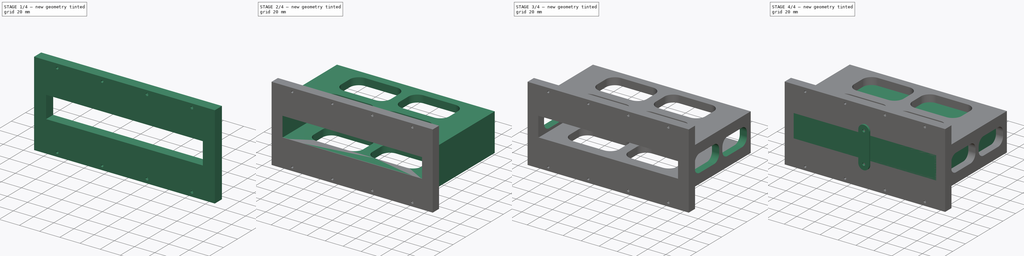
[diagram: build sequence overview — one tinted view per stage of 4, left to right]
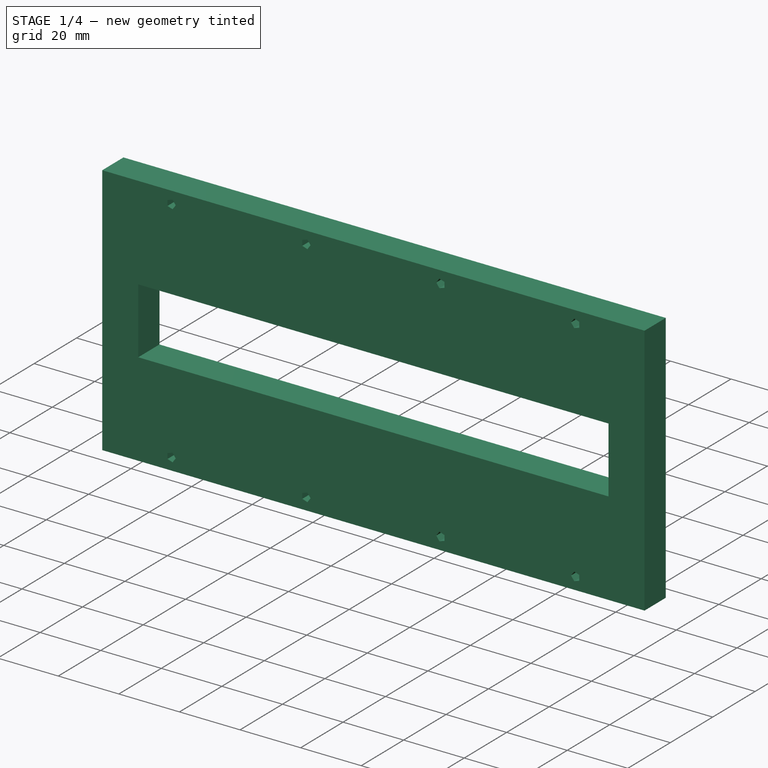
[diagram: stage 1 of 4 — iso view after this stage's code; geometry added in this stage tinted green]
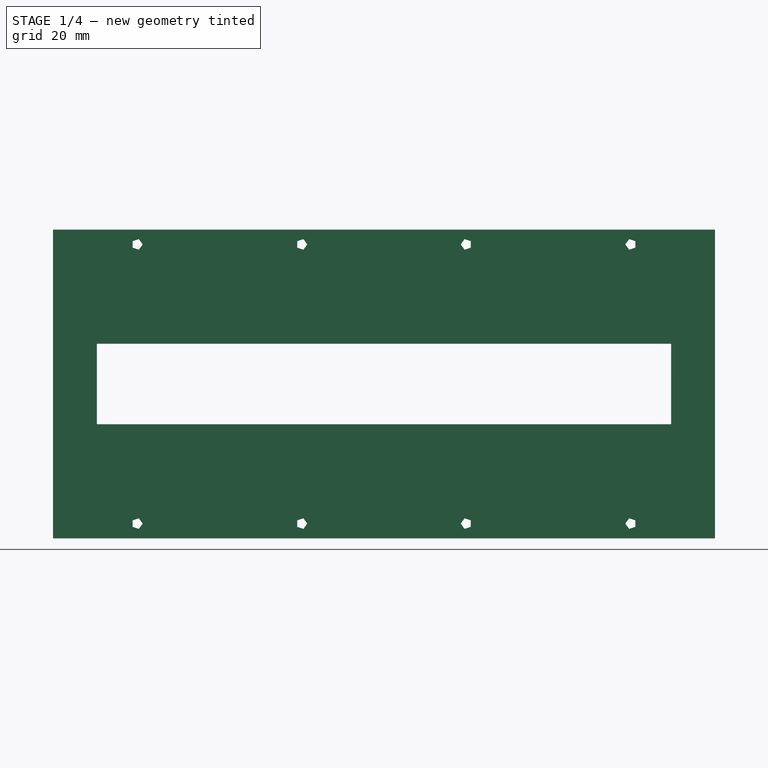
[diagram: stage 1 of 4 — front view after this stage's code; geometry added in this stage tinted green]
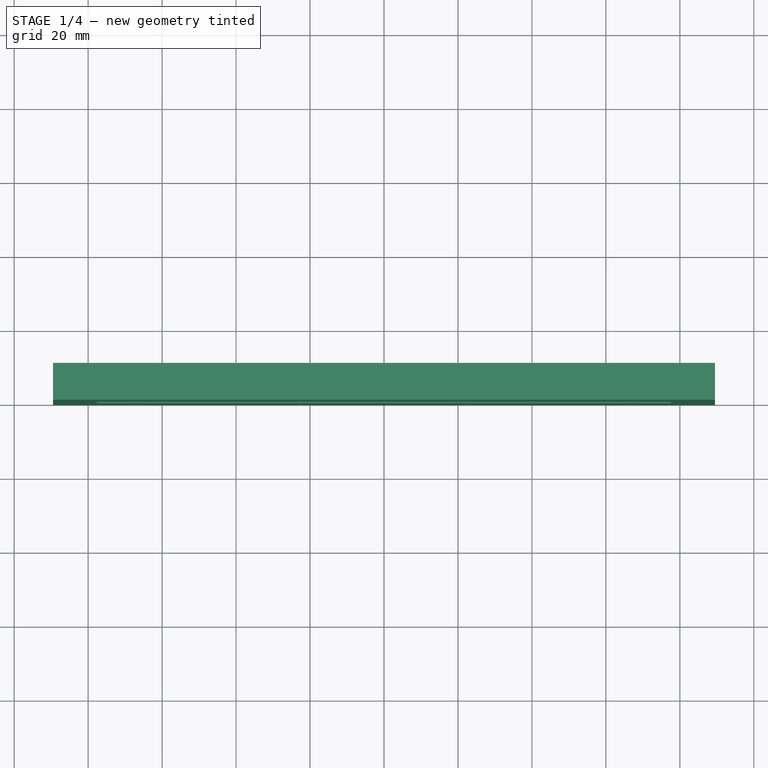
[diagram: stage 1 of 4 — top view after this stage's code; geometry added in this stage tinted green]
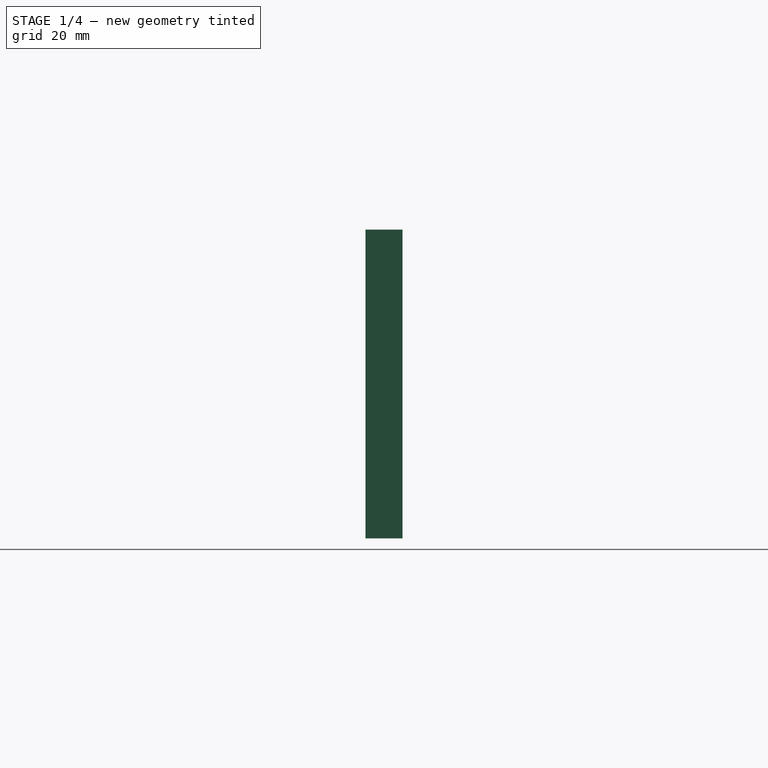
[diagram: stage 1 of 4 — right view after this stage's code; geometry added in this stage tinted green]
FCSTD DOCUMENT  (FreeCAD 0.21R33771 (Git))
Label: tplink-er605
License: All rights reserved
LicenseURL: https://en.wikipedia.org/wiki/All_rights_reserved
objects: PartDesign::Plane×13, Sketcher::SketchObject×11, PartDesign::CoordinateSystem×9, PartDesign::Pocket×7, PartDesign::Pad×4, App::Part×4, App::DocumentObjectGroup×3, PartDesign::Body×3, App::Link×3, App::FeaturePython×1
note: 58 computed .brp shape members not serialized (recipe doc carries the construction recipe); baked Part::Feature solids carry a one-line shape summary decoded from their .brp

FEATURE [PartDesign::Plane] DatumPlane  label="Front Panel Front"
  Length = 203.451
  MapMode = 5
  Placement = pos=(0,0,0) rot=(1,0,0;1.5708rad)
  ResizeMode = 0
  Support = -> [XZ_Plane]
  Width = 107.951
FEATURE [PartDesign::Plane] DatumPlane002  label="Front Panel Back"
  AttachmentOffset = pos=(0,0,-10) rot=(0,0,1;0rad)
  Length = 203.451
  MapMode = 5
  Placement = pos=(0,10,2.2e-15) rot=(1,0,0;1.5708rad)
  ResizeMode = 0
  Support = -> [DatumPlane]
  Width = 107.951
FEATURE [Sketcher::SketchObject] Sketch  label="Front Panel Outer"
  FullyConstrained = true
  MapMode = 5
  Placement = pos=(0,0,0) rot=(1,0,0;1.5708rad)
  Support = -> [DatumPlane]
  sketch-geometry (5):
    g0: LineSegment StartX=-89.5 StartY=41.75 StartZ=0 EndX=-89.5 EndY=-41.75 EndZ=0
    g1: LineSegment StartX=-89.5 StartY=-41.75 StartZ=0 EndX=89.5 EndY=-41.75 EndZ=0
    g2: LineSegment StartX=89.5 StartY=-41.75 StartZ=0 EndX=89.5 EndY=41.75 EndZ=0
    g3: LineSegment StartX=89.5 StartY=41.75 StartZ=0 EndX=-89.5 EndY=41.75 EndZ=0
    g4: GeomPoint X=0 Y=0 Z=0
  constraints (12):
    c: Coincident(g0,g1)
    c: Coincident(g1,g2)
    c: Coincident(g2,g3)
    c: Coincident(g3,g0)
    c: Horizontal(g1)
    c: Horizontal(g3)
    c: Vertical(g0)
    c: Vertical(g2)
    c: Symmetric(g1,g0,g4)
    c: Coincident(g4,g-1)
    c: DistanceX(g3,g3) = 179  'width'
    c: DistanceY(g2,g2) = 83.5  'height'
FEATURE [PartDesign::Pad] Pad  label="Front Panel"
  Direction = (0,-1,-2e-16)
  Length = 10
  Length2 = 10
  Placement = pos=(0,0,0) rot=(1,0,0;1.5708rad)
  Profile = -> Sketch
  ReferenceAxis = -> Sketch [N_Axis]
  Type = 3
  UpToFace = -> DatumPlane002 [Plane]
FEATURE [Sketcher::SketchObject] Sketch002  label="Front Panel Mounting Holes Outer"
  FullyConstrained = true
  MapMode = 5
  Placement = pos=(0,0,0) rot=(1,0,0;1.5708rad)
  Support = -> [DatumPlane]
  sketch-geometry (51):
    g0: LineSegment StartX=-66.75 StartY=37.75 StartZ=0 EndX=66.75 EndY=37.75 EndZ=0
    g1: LineSegment StartX=0 StartY=37.75 StartZ=0 EndX=0 EndY=-37.75 EndZ=0
    g2: LineSegment StartX=23.4635 StartY=38.6317 StartZ=0 EndX=21.7865 EndY=39.1766 EndZ=0
    g3: LineSegment StartX=21.7865 StartY=39.1766 StartZ=0 EndX=20.75 EndY=37.75 EndZ=0
    g4: LineSegment StartX=20.75 StartY=37.75 StartZ=0 EndX=21.7865 EndY=36.3234 EndZ=0
    g5: LineSegment StartX=21.7865 StartY=36.3234 StartZ=0 EndX=23.4635 EndY=36.8683 EndZ=0
    g6: LineSegment StartX=23.4635 StartY=36.8683 StartZ=0 EndX=23.4635 EndY=38.6317 EndZ=0
    g7: Circle CenterX=22.25 CenterY=37.75 CenterZ=0 NormalX=0 NormalY=0 NormalZ=1 AngleXU=0 Radius=1.5
    g8: LineSegment StartX=67.9635 StartY=36.8683 StartZ=0 EndX=67.9635 EndY=38.6317 EndZ=0
    g9: LineSegment StartX=67.9635 StartY=38.6317 StartZ=0 EndX=66.2865 EndY=39.1766 EndZ=0
    g10: LineSegment StartX=66.2865 StartY=39.1766 StartZ=0 EndX=65.25 EndY=37.75 EndZ=0
    g11: LineSegment StartX=65.25 StartY=37.75 StartZ=0 EndX=66.2865 EndY=36.3234 EndZ=0
    g12: LineSegment StartX=66.2865 StartY=36.3234 StartZ=0 EndX=67.9635 EndY=36.8683 EndZ=0
    g13: Circle CenterX=66.75 CenterY=37.75 CenterZ=0 NormalX=0 NormalY=0 NormalZ=1 AngleXU=0 Radius=1.5
    g14: LineSegment StartX=-20.75 StartY=37.75 StartZ=0 EndX=-21.7865 EndY=39.1766 EndZ=0
    g15: LineSegment StartX=-21.7865 StartY=39.1766 StartZ=0 EndX=-23.4635 EndY=38.6317 EndZ=0
    g16: LineSegment StartX=-23.4635 StartY=38.6317 StartZ=0 EndX=-23.4635 EndY=36.8683 EndZ=0
    g17: LineSegment StartX=-23.4635 StartY=36.8683 StartZ=0 EndX=-21.7865 EndY=36.3234 EndZ=0
    g18: LineSegment StartX=-21.7865 StartY=36.3234 StartZ=0 EndX=-20.75 EndY=37.75 EndZ=0
    g19: Circle CenterX=-22.25 CenterY=37.75 CenterZ=0 NormalX=0 NormalY=0 NormalZ=1 AngleXU=0 Radius=1.5
    g20: LineSegment StartX=-65.25 StartY=37.75 StartZ=0 EndX=-66.2865 EndY=39.1766 EndZ=0
    g21: LineSegment StartX=-66.2865 StartY=39.1766 StartZ=0 EndX=-67.9635 EndY=38.6317 EndZ=0
    g22: LineSegment StartX=-67.9635 StartY=38.6317 StartZ=0 EndX=-67.9635 EndY=36.8683 EndZ=0
    g23: LineSegment StartX=-67.9635 StartY=36.8683 StartZ=0 EndX=-66.2865 EndY=36.3234 EndZ=0
    g24: LineSegment StartX=-66.2865 StartY=36.3234 StartZ=0 EndX=-65.25 EndY=37.75 EndZ=0
    g25: Circle CenterX=-66.75 CenterY=37.75 CenterZ=0 NormalX=0 NormalY=0 NormalZ=1 AngleXU=0 Radius=1.5
    g26: LineSegment StartX=-66.2865 StartY=-39.1766 StartZ=0 EndX=-65.25 EndY=-37.75 EndZ=0
    g27: LineSegment StartX=-65.25 StartY=-37.75 StartZ=0 EndX=-66.2865 EndY=-36.3234 EndZ=0
    g28: LineSegment StartX=-66.2865 StartY=-36.3234 StartZ=0 EndX=-67.9635 EndY=-36.8683 EndZ=0
    g29: LineSegment StartX=-67.9635 StartY=-36.8683 StartZ=0 EndX=-67.9635 EndY=-38.6317 EndZ=0
    g30: LineSegment StartX=-67.9635 StartY=-38.6317 StartZ=0 EndX=-66.2865 EndY=-39.1766 EndZ=0
    g31: Circle CenterX=-66.75 CenterY=-37.75 CenterZ=0 NormalX=0 NormalY=0 NormalZ=1 AngleXU=0 Radius=1.5
    g32: LineSegment StartX=-20.75 StartY=-37.75 StartZ=0 EndX=-21.7865 EndY=-36.3234 EndZ=0
    g33: LineSegment StartX=-21.7865 StartY=-36.3234 StartZ=0 EndX=-23.4635 EndY=-36.8683 EndZ=0
    g34: LineSegment StartX=-23.4635 StartY=-36.8683 StartZ=0 EndX=-23.4635 EndY=-38.6317 EndZ=0
    g35: LineSegment StartX=-23.4635 StartY=-38.6317 StartZ=0 EndX=-21.7865 EndY=-39.1766 EndZ=0
    g36: LineSegment StartX=-21.7865 StartY=-39.1766 StartZ=0 EndX=-20.75 EndY=-37.75 EndZ=0
    g37: Circle CenterX=-22.25 CenterY=-37.75 CenterZ=0 NormalX=0 NormalY=0 NormalZ=1 AngleXU=0 Radius=1.5
    g38: LineSegment StartX=21.7865 StartY=-39.1766 StartZ=0 EndX=23.4635 EndY=-38.6317 EndZ=0
    g39: LineSegment StartX=23.4635 StartY=-38.6317 StartZ=0 EndX=23.4635 EndY=-36.8683 EndZ=0
    g40: LineSegment StartX=23.4635 StartY=-36.8683 StartZ=0 EndX=21.7865 EndY=-36.3234 EndZ=0
    g41: LineSegment StartX=21.7865 StartY=-36.3234 StartZ=0 EndX=20.75 EndY=-37.75 EndZ=0
    g42: LineSegment StartX=20.75 StartY=-37.75 StartZ=0 EndX=21.7865 EndY=-39.1766 EndZ=0
    g43: Circle CenterX=22.25 CenterY=-37.75 CenterZ=0 NormalX=0 NormalY=0 NormalZ=1 AngleXU=0 Radius=1.5
    g44: LineSegment StartX=67.9635 StartY=-36.8683 StartZ=0 EndX=66.2865 EndY=-36.3234 EndZ=0
    g45: LineSegment StartX=66.2865 StartY=-36.3234 StartZ=0 EndX=65.25 EndY=-37.75 EndZ=0
    g46: LineSegment StartX=65.25 StartY=-37.75 StartZ=0 EndX=66.2865 EndY=-39.1766 EndZ=0
    g47: LineSegment StartX=66.2865 StartY=-39.1766 StartZ=0 EndX=67.9635 EndY=-38.6317 EndZ=0
    g48: LineSegment StartX=67.9635 StartY=-38.6317 StartZ=0 EndX=67.9635 EndY=-36.8683 EndZ=0
    g49: Circle CenterX=66.75 CenterY=-37.75 CenterZ=0 NormalX=0 NormalY=0 NormalZ=1 AngleXU=0 Radius=1.5
    g50: LineSegment StartX=-66.75 StartY=-37.75 StartZ=0 EndX=66.75 EndY=-37.75 EndZ=0
  constraints (122):
    c: Horizontal(g0)
    c: PointOnObject(g1,g-2)
    c: Symmetric(g1,g1,g-1)
    c: DistanceY(g1,g1) = 75.5
    c: Symmetric(g0,g0,g1)
    c: Coincident(g2,g3)
    c: Coincident(g3,g4)
    c: Coincident(g4,g5)
    c: Coincident(g5,g6)
    c: Coincident(g6,g2)
    c: Equal(g2, g3-g6) x4
    c: PointOnObject(g2,g7)
    c: PointOnObject(g3,g7)
    c: PointOnObject(g4,g7)
    c: PointOnObject(g5,g7)
    c: PointOnObject(g6,g7)
    c: PointOnObject(g7,g0)
    c: Coincident(g8,g9)
    c: Coincident(g9,g10)
    c: Coincident(g10,g11)
    c: Coincident(g11,g12)
    c: Coincident(g12,g8)
    c: Equal(g8, g9-g12) x4
    c: PointOnObject(g8,g13)
    c: PointOnObject(g9,g13)
    c: PointOnObject(g10,g13)
    c: PointOnObject(g11,g13)
    c: PointOnObject(g12,g13)
    c: Coincident(g13,g0)
    c: Coincident(g14,g15)
    c: Coincident(g15,g16)
    c: Coincident(g16,g17)
    c: Coincident(g17,g18)
    c: Coincident(g18,g14)
    c: Equal(g14, g15-g18) x4
    c: PointOnObject(g14,g19)
    c: PointOnObject(g15,g19)
    c: PointOnObject(g16,g19)
    c: PointOnObject(g17,g19)
    c: PointOnObject(g18,g19)
    c: PointOnObject(g19,g0)
    c: Coincident(g20,g21)
    c: Coincident(g21,g22)
    c: Coincident(g22,g23)
    c: Coincident(g23,g24)
    c: Coincident(g24,g20)
    c: Equal(g20, g21-g24) x4
    c: PointOnObject(g20,g25)
    c: PointOnObject(g21,g25)
    c: PointOnObject(g22,g25)
    c: PointOnObject(g23,g25)
    c: PointOnObject(g24,g25)
    c: Coincident(g25,g0)
    c: DistanceX(g7,g0) = 44.5
    c: Equal(g7,g13)
    c: Equal(g19,g25)
    c: Coincident(g26,g27)
    c: Coincident(g27,g28)
    c: Coincident(g28,g29)
    c: Coincident(g29,g30)
    c: Coincident(g30,g26)
    c: Equal(g26, g27-g30) x4
    c: PointOnObject(g26,g31)
    c: PointOnObject(g27,g31)
    c: PointOnObject(g28,g31)
    c: PointOnObject(g29,g31)
    c: PointOnObject(g30,g31)
    c: Coincident(g32,g33)
    c: Coincident(g33,g34)
    c: Coincident(g34,g35)
    c: Coincident(g35,g36)
    c: Coincident(g36,g32)
    c: Equal(g32, g33-g36) x4
    c: PointOnObject(g32,g37)
    c: PointOnObject(g33,g37)
    c: PointOnObject(g34,g37)
    c: PointOnObject(g35,g37)
    c: PointOnObject(g36,g37)
    c: Coincident(g38,g39)
    c: Coincident(g39,g40)
    c: Coincident(g40,g41)
    c: Coincident(g41,g42)
    c: Coincident(g42,g38)
    c: Equal(g38, g39-g42) x4
    c: PointOnObject(g38,g43)
    c: PointOnObject(g39,g43)
    c: PointOnObject(g40,g43)
    c: PointOnObject(g41,g43)
    c: PointOnObject(g42,g43)
    c: Coincident(g44,g45)
    c: Coincident(g45,g46)
    c: Coincident(g46,g47)
    c: Coincident(g47,g48)
    c: Coincident(g48,g44)
    c: Equal(g44, g45-g48) x4
    c: PointOnObject(g44,g49)
    c: PointOnObject(g45,g49)
    c: PointOnObject(g46,g49)
    c: PointOnObject(g47,g49)
    c: PointOnObject(g48,g49)
    c: Symmetric(g19,g37,g-1)
    c: Symmetric(g31,g0,g-1)
    c: Symmetric(g7,g43,g-1)
    c: Symmetric(g0,g49,g-1)
    c: Equal(g31,g37)
    c: Diameter(g13) = 3
    c: Equal(g31,g13)
    c: PointOnObject(g10,g0)
    c: PointOnObject(g3,g0)
    c: PointOnObject(g14,g0)
    c: PointOnObject(g20,g0)
    c: Coincident(g50,g31)
    c: Coincident(g50,g49)
    c: PointOnObject(g45,g50)
    c: PointOnObject(g41,g50)
    c: PointOnObject(g32,g50)
    c: PointOnObject(g26,g50)
    c: Equal(g19,g7)
    c: Equal(g13,g49)
    c: Equal(g49,g43)
    c: DistanceX(g19,g7) = 44.5
    c: DistanceX(g0,g19) = 44.5
FEATURE [PartDesign::Pocket] Pocket001  label="Front Panel Mounting Holes"
  BaseFeature = -> Pad
  Direction = (0,1,2e-16)
  Length = 0
  Length2 = 5
  Placement = pos=(0,0,0) rot=(1,0,0;1.5708rad)
  Profile = -> Sketch002
  ReferenceAxis = -> Sketch002 [N_Axis]
  Type = 3
  UpToFace = -> DatumPlane002
FEATURE [Sketcher::SketchObject] Sketch003  label="Front Panel Cutout Outer"
  FullyConstrained = true
  MapMode = 5
  Placement = pos=(0,0,0) rot=(1,0,0;1.5708rad)
  Support = -> [DatumPlane]
  expr: Constraints[10] = <<Device Cutout Outer>>.Constraints.height - 4 mm
  expr: Constraints[11] = <<Device Cutout Outer>>.Constraints.width - 4 mm
  sketch-geometry (5):
    g0: LineSegment StartX=-77.625 StartY=10.875 StartZ=0 EndX=-77.625 EndY=-10.875 EndZ=0
    g1: LineSegment StartX=-77.625 StartY=-10.875 StartZ=0 EndX=77.625 EndY=-10.875 EndZ=0
    g2: LineSegment StartX=77.625 StartY=-10.875 StartZ=0 EndX=77.625 EndY=10.875 EndZ=0
    g3: LineSegment StartX=77.625 StartY=10.875 StartZ=0 EndX=-77.625 EndY=10.875 EndZ=0
    g4: GeomPoint X=0 Y=0 Z=0
  constraints (12):
    c: Coincident(g0,g1)
    c: Coincident(g1,g2)
    c: Coincident(g2,g3)
    c: Coincident(g3,g0)
    c: Horizontal(g1)
    c: Horizontal(g3)
    c: Vertical(g0)
    c: Vertical(g2)
    c: Symmetric(g1,g0,g4)
    c: Coincident(g4,g-1)
    c: DistanceY(g2,g2) = 21.75
    c: DistanceX(g3,g3) = 155.25
FEATURE [PartDesign::Pocket] Pocket  label="Front Panel Cutout"
  BaseFeature = -> Pocket001
  Direction = (0,1,2e-16)
  Length = 0
  Length2 = 5
  Placement = pos=(0,0,0) rot=(1,0,0;1.5708rad)
  Profile = -> Sketch003
  ReferenceAxis = -> Sketch003 [N_Axis]
  Type = 3
  UpToFace = -> DatumPlane002
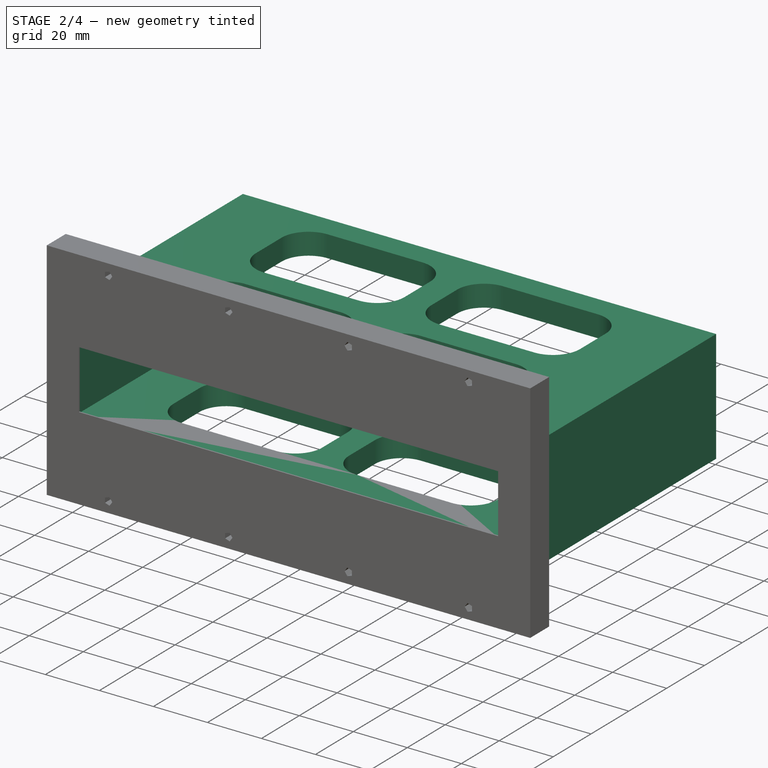
[diagram: stage 2 of 4 — iso view after this stage's code; geometry added in this stage tinted green]
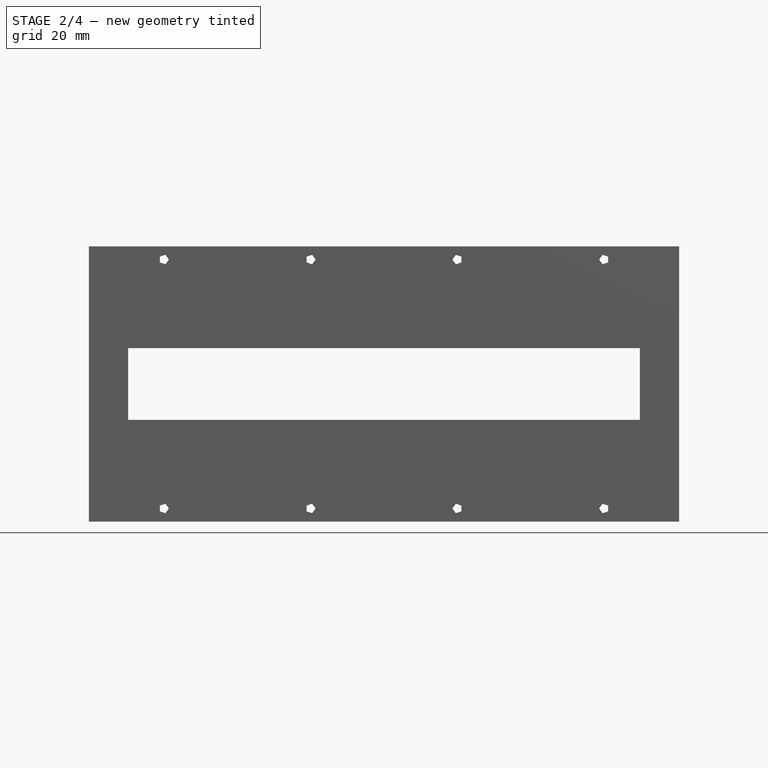
[diagram: stage 2 of 4 — front view after this stage's code; geometry added in this stage tinted green]
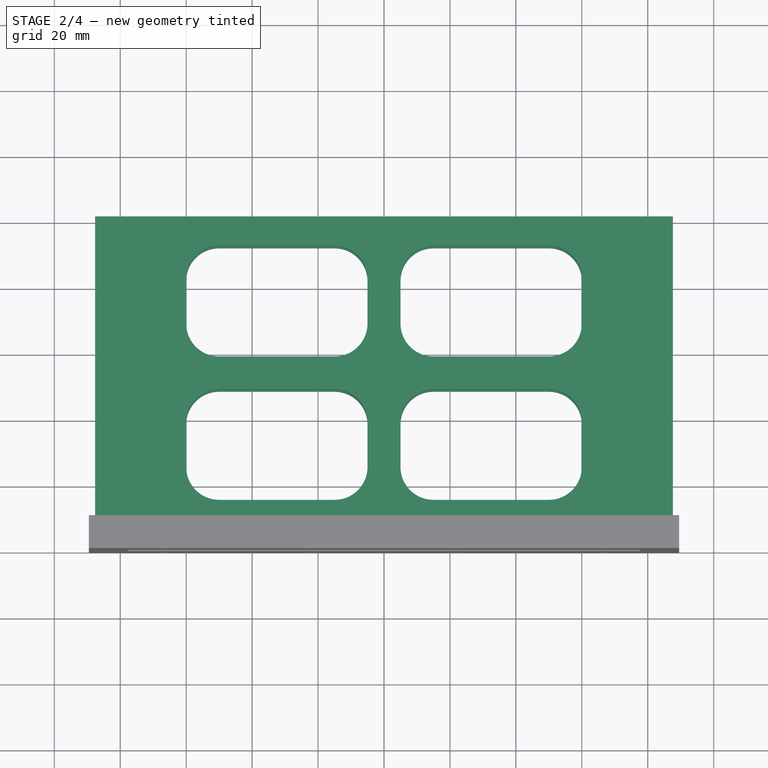
[diagram: stage 2 of 4 — top view after this stage's code; geometry added in this stage tinted green]
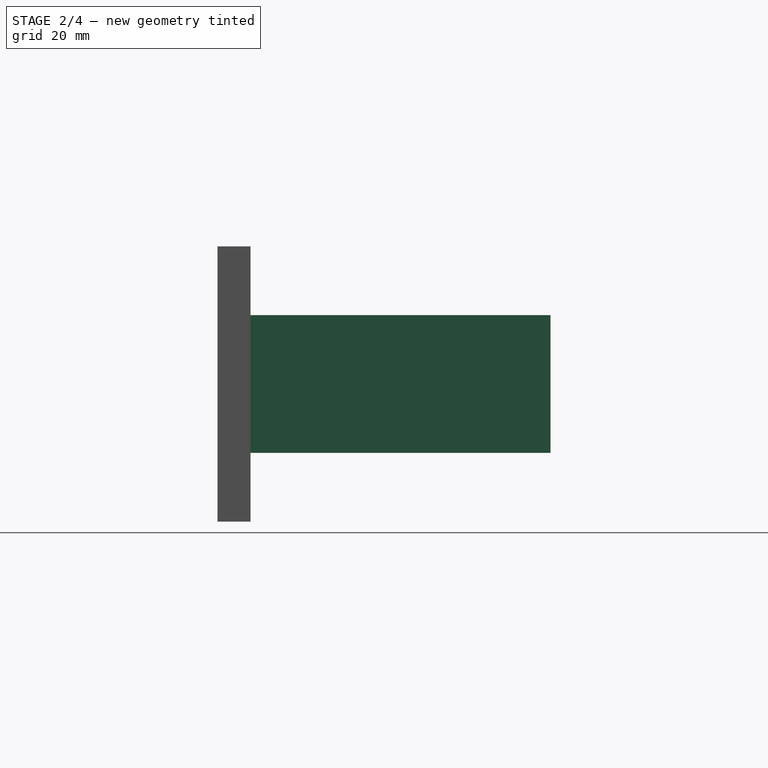
[diagram: stage 2 of 4 — right view after this stage's code; geometry added in this stage tinted green]
FEATURE [PartDesign::Plane] DatumPlane003  label="Front Side Of Device"
  AttachmentOffset = pos=(0,0,-0.5) rot=(0,0,1;0rad)
  Length = 203.451
  MapMode = 5
  Placement = pos=(0,0.5,1e-16) rot=(1,0,0;1.5708rad)
  ResizeMode = 0
  Support = -> [DatumPlane]
  Width = 107.951
FEATURE [Sketcher::SketchObject] Sketch004  label="Device Cutout Outer"
  FullyConstrained = true
  MapMode = 5
  Placement = pos=(0,0.5,1e-16) rot=(1,0,0;1.5708rad)
  Support = -> [DatumPlane003]
  expr: .Constraints.height = <<ER605 Front Profile>>.Constraints.height + 0.25 mm
  expr: .Constraints.width = <<ER605 Front Profile>>.Constraints.width + 0.25 mm
  sketch-geometry (5):
    g0: LineSegment StartX=-79.625 StartY=-12.875 StartZ=0 EndX=-79.625 EndY=12.875 EndZ=0
    g1: LineSegment StartX=-79.625 StartY=12.875 StartZ=0 EndX=79.625 EndY=12.875 EndZ=0
    g2: LineSegment StartX=79.625 StartY=12.875 StartZ=0 EndX=79.625 EndY=-12.875 EndZ=0
    g3: LineSegment StartX=79.625 StartY=-12.875 StartZ=0 EndX=-79.625 EndY=-12.875 EndZ=0
    g4: GeomPoint X=0 Y=0 Z=0
  constraints (12):
    c: Coincident(g0,g1)
    c: Coincident(g1,g2)
    c: Coincident(g2,g3)
    c: Coincident(g3,g0)
    c: Horizontal(g1)
    c: Horizontal(g3)
    c: Vertical(g0)
    c: Vertical(g2)
    c: Symmetric(g1,g0,g4)
    c: Coincident(g4,g-1)
    c: DistanceY(g2,g2) = 25.75  'height'
    c: DistanceX(g1,g1) = 159.25  'width'
FEATURE [PartDesign::Plane] DatumPlane004  label="Back Side Of Device"
  AttachmentOffset = pos=(0,0,-100.5) rot=(0,0,1;0rad)
  Length = 203.451
  MapMode = 5
  Placement = pos=(0,101,2.24e-14) rot=(1,0,0;1.5708rad)
  ResizeMode = 0
  Support = -> [DatumPlane003]
  Width = 107.951
FEATURE [Sketcher::SketchObject] Sketch005  label="Device Shelf Outer"
  FullyConstrained = true
  MapMode = 5
  Placement = pos=(0,0.5,1e-16) rot=(1,0,0;1.5708rad)
  Support = -> [DatumPlane003]
  expr: .Constraints.height = <<Device Cutout Outer>>.Constraints.height + 16 mm
  expr: .Constraints.width = <<Device Cutout Outer>>.Constraints.width + 16 mm
  sketch-geometry (5):
    g0: LineSegment StartX=-87.625 StartY=20.875 StartZ=0 EndX=-87.625 EndY=-20.875 EndZ=0
    g1: LineSegment StartX=-87.625 StartY=-20.875 StartZ=0 EndX=87.625 EndY=-20.875 EndZ=0
    g2: LineSegment StartX=87.625 StartY=-20.875 StartZ=0 EndX=87.625 EndY=20.875 EndZ=0
    g3: LineSegment StartX=87.625 StartY=20.875 StartZ=0 EndX=-87.625 EndY=20.875 EndZ=0
    g4: GeomPoint X=0 Y=0 Z=0
  constraints (12):
    c: Coincident(g0,g1)
    c: Coincident(g1,g2)
    c: Coincident(g2,g3)
    c: Coincident(g3,g0)
    c: Horizontal(g1)
    c: Horizontal(g3)
    c: Vertical(g0)
    c: Vertical(g2)
    c: Symmetric(g1,g0,g4)
    c: DistanceX(g3,g3) = 175.25  'width'
    c: Coincident(g4,g-1)
    c: DistanceY(g2,g2) = 41.75  'height'
FEATURE [PartDesign::Pad] Pad001  label="Device Shelf"
  BaseFeature = -> Pocket
  Direction = (0,-1,-2e-16)
  Length = 10
  Length2 = 10
  Placement = pos=(0,0,0) rot=(1,0,0;1.5708rad)
  Profile = -> Sketch005
  ReferenceAxis = -> Sketch005 [N_Axis]
  Type = 3
  UpToFace = -> DatumPlane004
FEATURE [PartDesign::Pocket] Pocket002  label="Device Cutout"
  BaseFeature = -> Pad001
  Direction = (0,1,2e-16)
  Length = 0
  Length2 = 5
  Placement = pos=(0,0,0) rot=(1,0,0;1.5708rad)
  Profile = -> Sketch004
  ReferenceAxis = -> Sketch004 [N_Axis]
  Type = 3
  UpToFace = -> DatumPlane004 [Plane]
FEATURE [PartDesign::Body] ER605_Body  label="ER605 Body"
  Group = -> [DatumPlane006,DatumPlane007,Sketch008,Pad002]
  Origin = -> Origin004
  Tip = -> Pad002
FEATURE [App::Part] ER605
  Group = -> [LCS_Origin002,ER605_Body]
  Origin = -> Origin003
FEATURE [PartDesign::Plane] DatumPlane008  label="Device Shelf Top"
  AttachmentOffset = pos=(0,0,20.875) rot=(0,0,1;0rad)
  Length = 209.036
  MapMode = 5
  Placement = pos=(0,0,20.875) rot=(0,0,1;0rad)
  ResizeMode = 0
  Support = -> [XY_Plane]
  Width = 156.036
  expr: .AttachmentOffset.Base.z = <<Device Shelf Outer>>.Constraints.height / 2
FEATURE [Sketcher::SketchObject] Sketch006  label="Vents Top Bottom Shape"
  FullyConstrained = true
  MapMode = 5
  Placement = pos=(0,0,20.875) rot=(0,0,1;0rad)
  Support = -> [DatumPlane008]
  sketch-geometry (40):
    g0: ArcOfCircle CenterX=-50 CenterY=82 CenterZ=0 NormalX=0 NormalY=0 NormalZ=1 AngleXU=0 Radius=10 StartAngle=1.5708 EndAngle=3.14159
    g1: LineSegment StartX=-50 StartY=92 StartZ=0 EndX=-15 EndY=92 EndZ=0
    g2: ArcOfCircle CenterX=-15 CenterY=82 CenterZ=0 NormalX=0 NormalY=0 NormalZ=1 AngleXU=0 Radius=10 StartAngle=6e-16 EndAngle=1.5708
    g3: LineSegment StartX=-5 StartY=82 StartZ=0 EndX=-5 EndY=68.5 EndZ=0
    g4: ArcOfCircle CenterX=-15 CenterY=68.5 CenterZ=0 NormalX=0 NormalY=0 NormalZ=1 AngleXU=0 Radius=10 StartAngle=4.71239 EndAngle=6.28319
    g5: LineSegment StartX=-15 StartY=58.5 StartZ=0 EndX=-50 EndY=58.5 EndZ=0
    g6: ArcOfCircle CenterX=-50 CenterY=68.5 CenterZ=0 NormalX=0 NormalY=0 NormalZ=1 AngleXU=0 Radius=10 StartAngle=3.14159 EndAngle=4.71239
    g7: LineSegment StartX=-60 StartY=68.5 StartZ=0 EndX=-60 EndY=82 EndZ=0
    g8: GeomPoint X=-60 Y=92 Z=0
    g9: GeomPoint X=-5 Y=58.5 Z=0
    g10: ArcOfCircle CenterX=15 CenterY=82 CenterZ=0 NormalX=0 NormalY=0 NormalZ=1 AngleXU=0 Radius=10 StartAngle=1.5708 EndAngle=3.14159
    g11: LineSegment StartX=15 StartY=92 StartZ=0 EndX=50 EndY=92 EndZ=0
    g12: ArcOfCircle CenterX=50 CenterY=82 CenterZ=0 NormalX=0 NormalY=0 NormalZ=1 AngleXU=0 Radius=10 StartAngle=-8.145e-13 EndAngle=1.5708
    g13: LineSegment StartX=60 StartY=82 StartZ=0 EndX=60 EndY=68.5 EndZ=0
    g14: ArcOfCircle CenterX=50 CenterY=68.5 CenterZ=0 NormalX=0 NormalY=0 NormalZ=1 AngleXU=0 Radius=10 StartAngle=4.71239 EndAngle=6.28319
    g15: LineSegment StartX=50 StartY=58.5 StartZ=0 EndX=15 EndY=58.5 EndZ=0
    g16: ArcOfCircle CenterX=15 CenterY=68.5 CenterZ=0 NormalX=0 NormalY=0 NormalZ=1 AngleXU=0 Radius=10 StartAngle=3.14159 EndAngle=4.71239
    g17: LineSegment StartX=5 StartY=68.5 StartZ=0 EndX=5 EndY=82 EndZ=0
    g18: GeomPoint X=5 Y=92 Z=0
    g19: GeomPoint X=60 Y=58.5 Z=0
    g20: ArcOfCircle CenterX=-50 CenterY=38.5 CenterZ=0 NormalX=0 NormalY=0 NormalZ=1 AngleXU=0 Radius=10 StartAngle=1.5708 EndAngle=3.14159
    g21: LineSegment StartX=-50 StartY=48.5 StartZ=0 EndX=-15 EndY=48.5 EndZ=0
    g22: ArcOfCircle CenterX=-15 CenterY=38.5 CenterZ=0 NormalX=0 NormalY=0 NormalZ=1 AngleXU=0 Radius=10 StartAngle=4e-16 EndAngle=1.5708
    g23: LineSegment StartX=-5 StartY=38.5 StartZ=0 EndX=-5 EndY=25 EndZ=0
    g24: ArcOfCircle CenterX=-15 CenterY=25 CenterZ=0 NormalX=0 NormalY=0 NormalZ=1 AngleXU=0 Radius=10 StartAngle=4.71239 EndAngle=6.28319
    g25: LineSegment StartX=-15 StartY=15 StartZ=0 EndX=-50 EndY=15 EndZ=0
    g26: ArcOfCircle CenterX=-50 CenterY=25 CenterZ=0 NormalX=0 NormalY=0 NormalZ=1 AngleXU=0 Radius=10 StartAngle=3.14159 EndAngle=4.71239
    g27: LineSegment StartX=-60 StartY=25 StartZ=0 EndX=-60 EndY=38.5 EndZ=0
    g28: GeomPoint X=-60 Y=48.5 Z=0
    g29: GeomPoint X=-5 Y=15 Z=0
    g30: ArcOfCircle CenterX=15 CenterY=38.5 CenterZ=0 NormalX=0 NormalY=0 NormalZ=1 AngleXU=0 Radius=10 StartAngle=1.5708 EndAngle=3.14159
    g31: LineSegment StartX=15 StartY=48.5 StartZ=0 EndX=50 EndY=48.5 EndZ=0
    g32: ArcOfCircle CenterX=50 CenterY=38.5 CenterZ=0 NormalX=0 NormalY=0 NormalZ=1 AngleXU=0 Radius=10 StartAngle=2e-16 EndAngle=1.5708
    g33: LineSegment StartX=60 StartY=38.5 StartZ=0 EndX=60 EndY=25 EndZ=0
    g34: ArcOfCircle CenterX=50 CenterY=25 CenterZ=0 NormalX=0 NormalY=0 NormalZ=1 AngleXU=0 Radius=10 StartAngle=4.71239 EndAngle=6.28319
    g35: LineSegment StartX=50 StartY=15 StartZ=0 EndX=15 EndY=15 EndZ=0
    g36: ArcOfCircle CenterX=15 CenterY=25 CenterZ=0 NormalX=0 NormalY=0 NormalZ=1 AngleXU=0 Radius=10 StartAngle=3.14159 EndAngle=4.71239
    g37: LineSegment StartX=5 StartY=25 StartZ=0 EndX=5 EndY=38.5 EndZ=0
    g38: GeomPoint X=5 Y=48.5 Z=0
    g39: GeomPoint X=60 Y=15 Z=0
  constraints (95):
    c: Tangent(g0,g1) = 1.5708
    c: Tangent(g1,g2) = 1.5708
    c: Tangent(g2,g3) = 1.5708
    c: Tangent(g3,g4) = 1.5708
    c: Tangent(g4,g5) = 1.5708
    c: Tangent(g5,g6) = 1.5708
    c: Tangent(g6,g7) = 1.5708
    c: Tangent(g7,g0) = 1.5708
    c: Horizontal(g1)
    c: Horizontal(g5)
    c: Vertical(g3)
    c: Vertical(g7)
    c: Equal(g0,g2)
    c: Equal(g2,g4)
    c: Equal(g4,g6)
    c: PointOnObject(g8,g1)
    c: PointOnObject(g8,g7)
    c: PointOnObject(g9,g3)
    c: PointOnObject(g9,g5)
    c: Tangent(g10,g11) = 1.5708
    c: Tangent(g11,g12) = 1.5708
    c: Tangent(g12,g13) = 1.5708
    c: Tangent(g13,g14) = 1.5708
    c: Tangent(g14,g15) = 1.5708
    c: Tangent(g15,g16) = 1.5708
    c: Tangent(g16,g17) = 1.5708
    c: Tangent(g17,g10) = 1.5708
    c: Horizontal(g11)
    c: Horizontal(g15)
    c: Vertical(g13)
    c: Vertical(g17)
    c: Equal(g10,g12)
    c: Equal(g12,g14)
    c: Equal(g14,g16)
    c: PointOnObject(g18,g11)
    c: PointOnObject(g18,g17)
    c: PointOnObject(g19,g13)
    c: PointOnObject(g19,g15)
    c: Tangent(g20,g21) = 1.5708
    c: Tangent(g21,g22) = 1.5708
    c: Tangent(g22,g23) = 1.5708
    c: Tangent(g23,g24) = 1.5708
    c: Tangent(g24,g25) = 1.5708
    c: Tangent(g25,g26) = 1.5708
    c: Tangent(g26,g27) = 1.5708
    c: Tangent(g27,g20) = 1.5708
    c: Horizontal(g21)
    c: Horizontal(g25)
    c: Vertical(g23)
    c: Vertical(g27)
    c: Equal(g20,g22)
    c: Equal(g22,g24)
    c: Equal(g24,g26)
    c: PointOnObject(g28,g21)
    c: PointOnObject(g28,g27)
    c: PointOnObject(g29,g23)
    c: PointOnObject(g29,g25)
    c: Tangent(g30,g31) = 1.5708
    c: Tangent(g31,g32) = 1.5708
    c: Tangent(g32,g33) = 1.5708
    c: Tangent(g33,g34) = 1.5708
    c: Tangent(g34,g35) = 1.5708
    c: Tangent(g35,g36) = 1.5708
    c: Tangent(g36,g37) = 1.5708
    c: Tangent(g37,g30) = 1.5708
    c: Horizontal(g31)
    c: Horizontal(g35)
    c: Vertical(g33)
    c: Vertical(g37)
    c: Equal(g30,g32)
    c: Equal(g32,g34)
    c: Equal(g34,g36)
    c: PointOnObject(g38,g31)
    c: PointOnObject(g38,g37)
    c: PointOnObject(g39,g33)
    c: PointOnObject(g39,g35)
    c: Equal(g2,g22)
    c: Equal(g22,g12)
    c: Equal(g12,g32)
    c: Equal(g21,g1)
    c: Equal(g1,g11)
    c: Equal(g11,g31)
    c: Equal(g3,g23)
    c: Equal(g23,g33)
    c: Equal(g33,g13)
    c: Vertical(g6,g26)
    c: Vertical(g16,g36)
    c: Horizontal(g16,g6)
    c: Radius(g12) = 10
    c: Symmetric(g23,g36,g-2)
    c: DistanceY(g-1,g34) = 15
    c: DistanceY(g-1,g11) = 92
    c: DistanceY(g20,g5) = 10
    c: DistanceX(g2,g10) = 10
    c: DistanceX(g0,g12) = 120
FEATURE [PartDesign::Plane] DatumPlane009  label="Device Shelf Bottom"
  AttachmentOffset = pos=(0,0,-20.875) rot=(0,0,1;0rad)
  Length = 209.036
  MapMode = 5
  Placement = pos=(0,0,-20.875) rot=(0,0,1;0rad)
  ResizeMode = 0
  Support = -> [XY_Plane]
  Width = 156.036
  expr: .AttachmentOffset.Base.z = -<<Device Shelf Outer>>.Constraints.height / 2
FEATURE [PartDesign::Pocket] Pocket003  label="Vents Top Bottom"
  BaseFeature = -> Pocket002
  Direction = (0,0,-1)
  Length = 0
  Length2 = 5
  Placement = pos=(0,0,0) rot=(1,0,0;1.5708rad)
  Profile = -> Sketch006
  ReferenceAxis = -> Sketch006 [N_Axis]
  Type = 3
  UpToFace = -> DatumPlane009 [Plane]
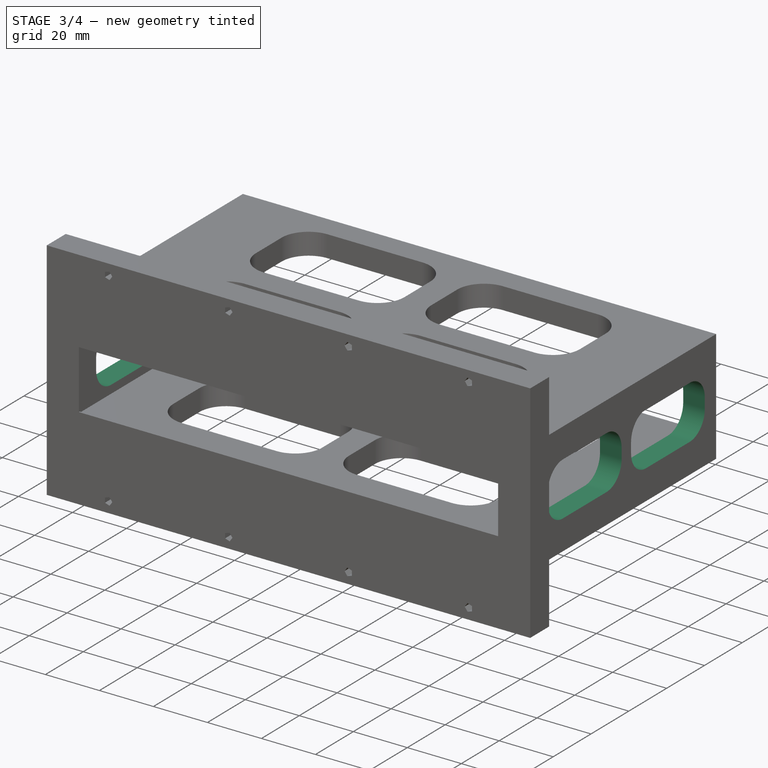
[diagram: stage 3 of 4 — iso view after this stage's code; geometry added in this stage tinted green]
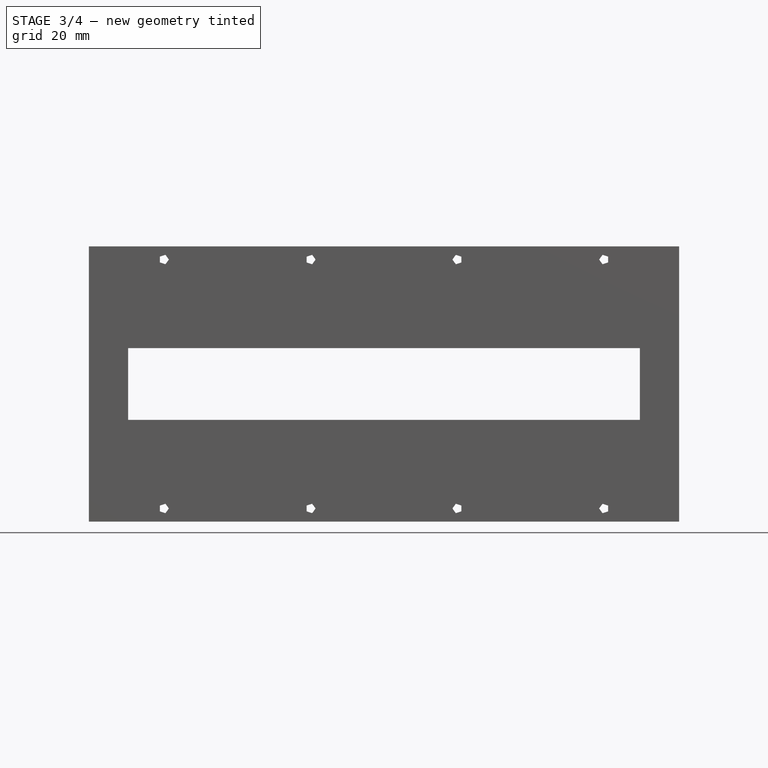
[diagram: stage 3 of 4 — front view after this stage's code; geometry added in this stage tinted green]
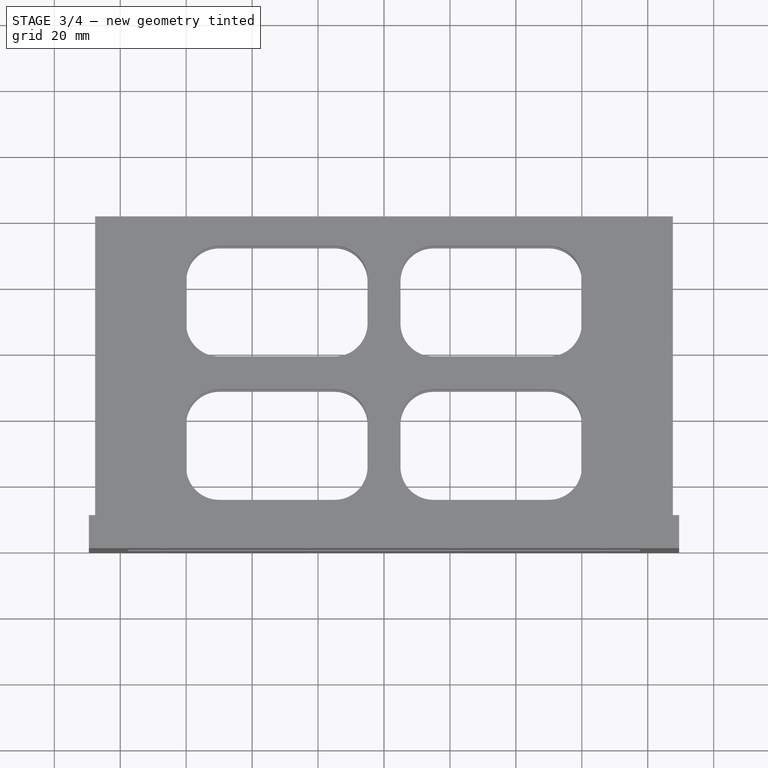
[diagram: stage 3 of 4 — top view after this stage's code; geometry added in this stage tinted green]
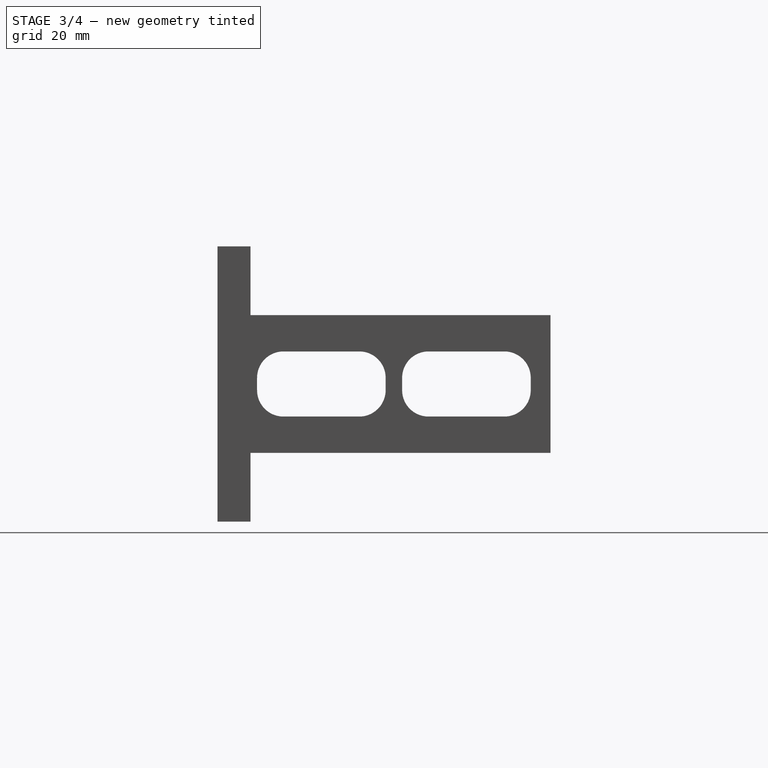
[diagram: stage 3 of 4 — right view after this stage's code; geometry added in this stage tinted green]
FEATURE [PartDesign::Plane] DatumPlane010  label="Device Shelf Right"
  AttachmentOffset = pos=(0,0,87.625) rot=(0,0,1;0rad)
  Length = 146.514
  MapMode = 5
  Placement = pos=(87.625,-1.95e-14,1.95e-14) rot=(0.57735,0.57735,0.57735;2.0944rad)
  ResizeMode = 0
  Support = -> [YZ_Plane]
  Width = 104.014
  expr: .AttachmentOffset.Base.z = <<Device Shelf Outer>>.Constraints.width / 2
FEATURE [Sketcher::SketchObject] Sketch007  label="Vents Left Right Shape"
  FullyConstrained = true
  MapMode = 5
  Placement = pos=(87.625,-1.95e-14,1.95e-14) rot=(0.57735,0.57735,0.57735;2.0944rad)
  Support = -> [DatumPlane010]
  expr: Constraints[41] = <<Device Cutout Outer>>.Constraints.height - 6 mm
  sketch-geometry (20):
    g0: ArcOfCircle CenterX=20 CenterY=1.875 CenterZ=0 NormalX=0 NormalY=0 NormalZ=1 AngleXU=0 Radius=8 StartAngle=1.5708 EndAngle=3.14159
    g1: LineSegment StartX=20 StartY=9.875 StartZ=0 EndX=43 EndY=9.875 EndZ=0
    g2: ArcOfCircle CenterX=43 CenterY=1.875 CenterZ=0 NormalX=0 NormalY=0 NormalZ=1 AngleXU=0 Radius=8 StartAngle=1e-16 EndAngle=1.5708
    g3: LineSegment StartX=51 StartY=1.875 StartZ=0 EndX=51 EndY=-1.875 EndZ=0
    g4: ArcOfCircle CenterX=43 CenterY=-1.875 CenterZ=0 NormalX=0 NormalY=0 NormalZ=1 AngleXU=0 Radius=8 StartAngle=4.71239 EndAngle=6.28319
    g5: LineSegment StartX=43 StartY=-9.875 StartZ=0 EndX=20 EndY=-9.875 EndZ=0
    g6: ArcOfCircle CenterX=20 CenterY=-1.875 CenterZ=0 NormalX=0 NormalY=0 NormalZ=1 AngleXU=0 Radius=8 StartAngle=3.14159 EndAngle=4.71239
    g7: LineSegment StartX=12 StartY=-1.875 StartZ=0 EndX=12 EndY=1.875 EndZ=0
    g8: GeomPoint X=12 Y=9.875 Z=0
    g9: GeomPoint X=51 Y=-9.875 Z=0
    g10: ArcOfCircle CenterX=64 CenterY=1.875 CenterZ=0 NormalX=0 NormalY=0 NormalZ=1 AngleXU=0 Radius=8 StartAngle=1.5708 EndAngle=3.14159
    g11: LineSegment StartX=64 StartY=9.875 StartZ=0 EndX=87 EndY=9.875 EndZ=0
    g12: ArcOfCircle CenterX=87 CenterY=1.875 CenterZ=0 NormalX=0 NormalY=0 NormalZ=1 AngleXU=0 Radius=8 StartAngle=1e-16 EndAngle=1.5708
    g13: LineSegment StartX=95 StartY=1.875 StartZ=0 EndX=95 EndY=-1.875 EndZ=0
    g14: ArcOfCircle CenterX=87 CenterY=-1.875 CenterZ=0 NormalX=0 NormalY=0 NormalZ=1 AngleXU=0 Radius=8 StartAngle=4.71239 EndAngle=6.28319
    g15: LineSegment StartX=87 StartY=-9.875 StartZ=0 EndX=64 EndY=-9.875 EndZ=0
    g16: ArcOfCircle CenterX=64 CenterY=-1.875 CenterZ=0 NormalX=0 NormalY=0 NormalZ=1 AngleXU=0 Radius=8 StartAngle=3.14159 EndAngle=4.71239
    g17: LineSegment StartX=56 StartY=-1.875 StartZ=0 EndX=56 EndY=1.875 EndZ=0
    g18: GeomPoint X=56 Y=9.875 Z=0
    g19: GeomPoint X=95 Y=-9.875 Z=0
  constraints (47):
    c: Tangent(g0,g1) = 1.5708
    c: Tangent(g1,g2) = 1.5708
    c: Tangent(g2,g3) = 1.5708
    c: Tangent(g3,g4) = 1.5708
    c: Tangent(g4,g5) = 1.5708
    c: Tangent(g5,g6) = 1.5708
    c: Tangent(g6,g7) = 1.5708
    c: Tangent(g7,g0) = 1.5708
    c: Horizontal(g1)
    c: Horizontal(g5)
    c: Vertical(g3)
    c: Vertical(g7)
    c: Equal(g0,g2)
    c: Equal(g2,g4)
    c: PointOnObject(g8,g1)
    c: PointOnObject(g8,g7)
    c: PointOnObject(g9,g3)
    c: PointOnObject(g9,g5)
    c: Tangent(g10,g11) = 1.5708
    c: Tangent(g11,g12) = 1.5708
    c: Tangent(g12,g13) = 1.5708
    c: Tangent(g13,g14) = 1.5708
    c: Tangent(g14,g15) = 1.5708
    c: Tangent(g15,g16) = 1.5708
    c: Tangent(g16,g17) = 1.5708
    c: Tangent(g17,g10) = 1.5708
    c: Horizontal(g11)
    c: Horizontal(g15)
    c: Vertical(g13)
    c: Vertical(g17)
    c: Equal(g10,g12)
    c: Equal(g12,g14)
    c: Equal(g14,g16)
    c: PointOnObject(g18,g11)
    c: PointOnObject(g18,g17)
    c: PointOnObject(g19,g13)
    c: PointOnObject(g19,g15)
    c: Symmetric(g0,g6,g-1)
    c: Horizontal(g0,g10)
    c: Horizontal(g6,g16)
    c: Equal(g0,g10)
    c: DistanceY(g5,g0) = 19.75
    c: Equal(g1,g11)
    c: DistanceX(g-1,g6) = 12
    c: DistanceX(g3,g16) = 5
    c: DistanceX(g-1,g13) = 95
    c: Radius(g12) = 8
FEATURE [PartDesign::Plane] DatumPlane011  label="Device Shelf Left"
  AttachmentOffset = pos=(0,0,-87.625) rot=(0,0,1;0rad)
  Length = 146.514
  MapMode = 5
  Placement = pos=(-87.625,1.95e-14,-1.95e-14) rot=(0.57735,0.57735,0.57735;2.0944rad)
  ResizeMode = 0
  Support = -> [YZ_Plane]
  Width = 104.014
  expr: .AttachmentOffset.Base.z = -<<Device Shelf Outer>>.Constraints.width / 2
FEATURE [PartDesign::Pocket] Pocket004  label="Vents Left Right"
  BaseFeature = -> Pocket003
  Direction = (-1,1e-16,-1e-16)
  Length = 0
  Length2 = 5
  Placement = pos=(0,0,0) rot=(1,0,0;1.5708rad)
  Profile = -> Sketch007
  ReferenceAxis = -> Sketch007 [N_Axis]
  Type = 3
  UpToFace = -> DatumPlane011 [Plane]
FEATURE [PartDesign::Plane] DatumPlane014  label="Shelf Retention Clamp Mounting Holes Depth"
  AttachmentOffset = pos=(0,0,10) rot=(0,0,1;0rad)
  Length = 203.451
  MapMode = 5
  Placement = pos=(0,91,2.02e-14) rot=(1,0,0;1.5708rad)
  ResizeMode = 0
  Support = -> [DatumPlane004]
  Width = 107.951
FEATURE [Sketcher::SketchObject] Sketch011  label="Shelf Retention Clamp Mounting Holes Outer"
  FullyConstrained = true
  MapMode = 5
  Placement = pos=(0,101,2.24e-14) rot=(1,0,0;1.5708rad)
  Support = -> [DatumPlane004]
  expr: .Constraints.offset = <<Device Shelf Outer>>.Constraints.height - 8 mm
  sketch-geometry (12):
    g0: LineSegment StartX=0 StartY=15.375 StartZ=0 EndX=1.42658 EndY=16.4115 EndZ=0
    g1: LineSegment StartX=1.42658 StartY=16.4115 StartZ=0 EndX=0.881678 EndY=18.0885 EndZ=0
    g2: LineSegment StartX=0.881678 StartY=18.0885 StartZ=0 EndX=-0.881678 EndY=18.0885 EndZ=0
    g3: LineSegment StartX=-0.881678 StartY=18.0885 StartZ=0 EndX=-1.42658 EndY=16.4115 EndZ=0
    g4: LineSegment StartX=-1.42658 StartY=16.4115 StartZ=0 EndX=0 EndY=15.375 EndZ=0
    g5: Circle CenterX=0 CenterY=16.875 CenterZ=0 NormalX=0 NormalY=0 NormalZ=1 AngleXU=0 Radius=1.5
    g6: LineSegment StartX=1.42658 StartY=-16.4115 StartZ=0 EndX=0 EndY=-15.375 EndZ=0
    g7: LineSegment StartX=0 StartY=-15.375 StartZ=0 EndX=-1.42658 EndY=-16.4115 EndZ=0
    g8: LineSegment StartX=-1.42658 StartY=-16.4115 StartZ=0 EndX=-0.881678 EndY=-18.0885 EndZ=0
    g9: LineSegment StartX=-0.881678 StartY=-18.0885 StartZ=0 EndX=0.881678 EndY=-18.0885 EndZ=0
    g10: LineSegment StartX=0.881678 StartY=-18.0885 StartZ=0 EndX=1.42658 EndY=-16.4115 EndZ=0
    g11: Circle CenterX=0 CenterY=-16.875 CenterZ=0 NormalX=0 NormalY=0 NormalZ=1 AngleXU=0 Radius=1.5
  constraints (29):
    c: Coincident(g0,g1)
    c: Coincident(g1,g2)
    c: Coincident(g2,g3)
    c: Coincident(g3,g4)
    c: Coincident(g4,g0)
    c: Equal(g0, g1-g4) x4
    c: PointOnObject(g0,g5)
    c: PointOnObject(g1,g5)
    c: PointOnObject(g2,g5)
    c: PointOnObject(g3,g5)
    c: PointOnObject(g4,g5)
    c: PointOnObject(g5,g-2)
    c: Diameter(g5) = 3  'diameter'
    c: PointOnObject(g0,g-2)
    c: Coincident(g6,g7)
    c: Coincident(g7,g8)
    c: Coincident(g8,g9)
    c: Coincident(g9,g10)
    c: Coincident(g10,g6)
    c: Equal(g6, g7-g10) x4
    c: PointOnObject(g6,g11)
    c: PointOnObject(g7,g11)
    c: PointOnObject(g8,g11)
    c: PointOnObject(g9,g11)
    c: PointOnObject(g10,g11)
    c: Symmetric(g5,g11,g-1)
    c: PointOnObject(g6,g-2)
    c: DistanceY(g11,g5) = 33.75  'offset'
    c: Equal(g11,g5)
FEATURE [PartDesign::Pocket] Pocket006  label="Shelf Retention Clamp Mounting Holes"
  BaseFeature = -> Pocket004
  Direction = (0,1,2e-16)
  Length = 0
  Length2 = 5
  Placement = pos=(0,0,0) rot=(1,0,0;1.5708rad)
  Profile = -> Sketch011
  ReferenceAxis = -> Sketch011 [N_Axis]
  Type = 3
  UpToFace = -> DatumPlane014 [Plane]
FEATURE [PartDesign::CoordinateSystem] Local_CS001  label="Shelf Retention Clamp Top Mounting Hole (Body)"
  AttacherType = Attacher::AttachEngine3D
  AttachmentOffset = pos=(0,16.875,0) rot=(0,1,0;3.14159rad)
  MapMode = 5
  Placement = pos=(0,101,16.875) rot=(0,0.707107,0.707107;3.14159rad)
  Support = -> [DatumPlane004]
  expr: .AttachmentOffset.Base.y = <<Shelf Retention Clamp Mounting Holes Outer>>.Constraints.offset / 2
FEATURE [PartDesign::Body] Body  label="Rack Mount Body"
  Group = -> [DatumPlane,DatumPlane002,Sketch,Pad,Sketch002,Pocket001,DatumPlane003,DatumPlane004,Local_CS,Pocket,Sketch003,Sketch004,Sketch005,Pad001,Pocket002,Sketch006,Sketch007,DatumPlane008,DatumPlane009,Pocket003,DatumPlane010,DatumPlane011,Pocket004,DatumPlane014,Sketch011,Pocket006,Local_CS001]
  Origin = -> Origin
  Tip = -> Pocket006
FEATURE [PartDesign::CoordinateSystem] Shelf_Retention_Clamp_Top_Mounting_Hole  label="Shelf Retention Clamp Top Mounting Hole"
  AttacherType = Attacher::AttachEngine3D
  MapMode = 5
  Placement = pos=(0,101,16.875) rot=(0,0.707107,0.707107;3.14159rad)
  Support = -> [Local_CS001]
FEATURE [App::Part] Rack_Mount  label="Rack Mount"
  Group = -> [LCS_Origin001,Body,Front_Of_Device,Shelf_Retention_Clamp_Top_Mounting_Hole]
  Origin = -> Origin002
FEATURE [PartDesign::CoordinateSystem] Local_CS002  label="Retention Clamp Top Mounting Hole (Body)"
  AttacherType = Attacher::AttachEngine3D
  AttachmentOffset = pos=(0,16.875,0) rot=(0,0,1;0rad)
  MapMode = 5
  Placement = pos=(0,-3.7e-15,16.875) rot=(1,0,0;1.5708rad)
  Support = -> [DatumPlane012]
  expr: .AttachmentOffset.Base.y = <<Shelf Retention Clamp Mounting Holes Outer>>.Constraints.offset / 2
FEATURE [PartDesign::Body] Retention_Clamp_Body  label="Retention Clamp Body"
  Group = -> [Sketch009,DatumPlane012,DatumPlane013,Pad003,Sketch010,Pocket005,Local_CS002]
  Origin = -> Origin006
  Tip = -> Pocket005
FEATURE [PartDesign::CoordinateSystem] Retention_Clamp_Top_Mounting_Hole  label="Retention Clamp Top Mounting Hole"
  AttacherType = Attacher::AttachEngine3D
  MapMode = 5
  Placement = pos=(0,-3.7e-15,16.875) rot=(1,0,0;1.5708rad)
  Support = -> [Local_CS002]
FEATURE [App::Part] Retention_Clamp  label="Retention Clamp"
  Group = -> [Retention_Clamp_Body,Retention_Clamp_Top_Mounting_Hole]
  Origin = -> Origin005
FEATURE [App::DocumentObjectGroup] Parts
  Group = -> [Rack_Mount,ER605,Retention_Clamp]
FEATURE [App::Link] Retention_Clamp__Ass_  label="Retention Clamp (Ass)"
  AttachedBy = #Retention_Clamp_Top_Mounting_Hole
  AttachedTo = Rack_Mount_Ass#Shelf_Retention_Clamp_Top_Mounting_Hole
  LinkPlacement = pos=(-3.4e-15,101,2.13e-14) rot=(0,0,1;3.14159rad)
  LinkedObject = -> Retention_Clamp
  Placement = pos=(-3.4e-15,101,2.13e-14) rot=(0,0,1;3.14159rad)
  SolverId = Asm4EE
  expr: Placement = Rack_Mount_Ass.Placement * Shelf_Retention_Clamp_Top_Mounting_Hole.Placement * AttachmentOffset * Retention_Clamp_Top_Mounting_Hole.Placement ^ -1
FEATURE [App::Part] Assembly
  AssemblyType = Part::Link
  Group = -> [LCS_Origin,Constraints,Variables,Configurations,Rack_Mount_Ass,ER605_Ass,Retention_Clamp__Ass_]
  Origin = -> Origin001
  Type = Assembly
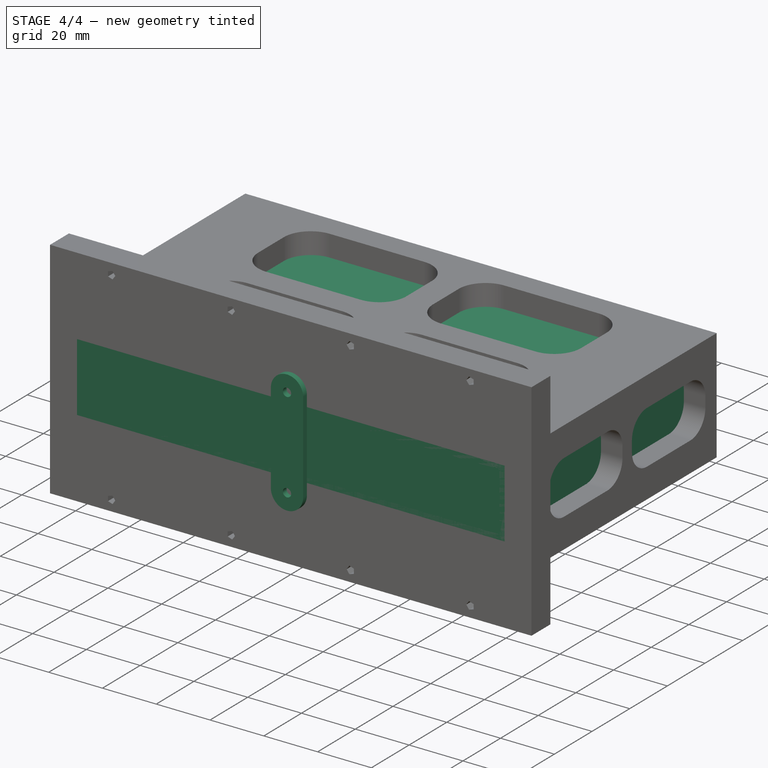
[diagram: stage 4 of 4 — iso view after this stage's code; geometry added in this stage tinted green]
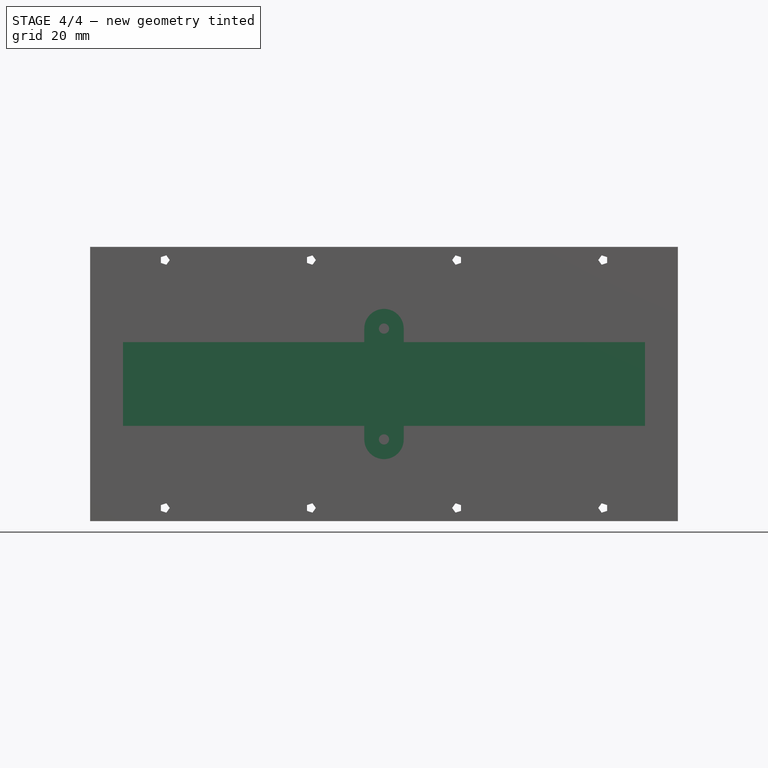
[diagram: stage 4 of 4 — front view after this stage's code; geometry added in this stage tinted green]
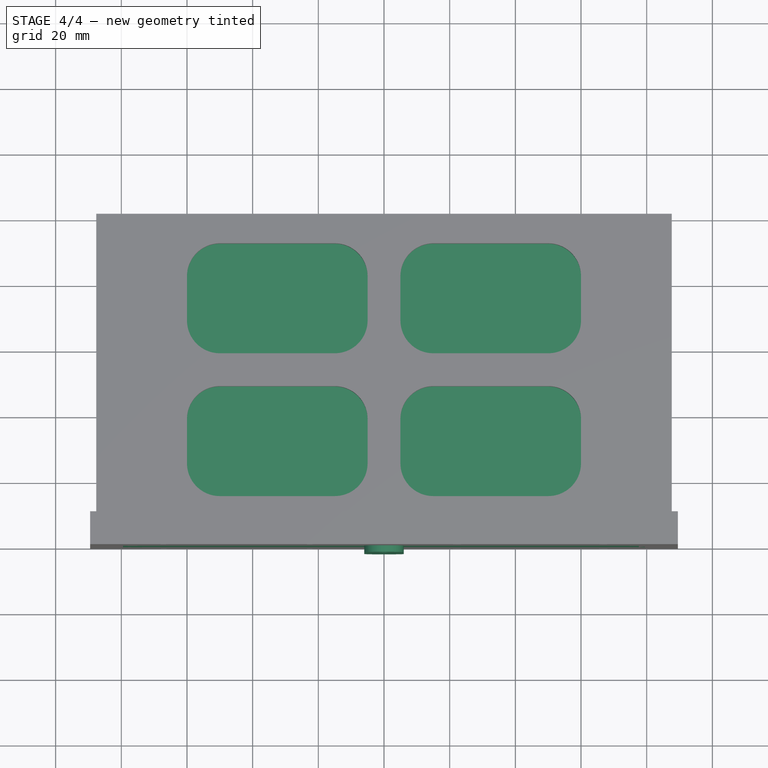
[diagram: stage 4 of 4 — top view after this stage's code; geometry added in this stage tinted green]
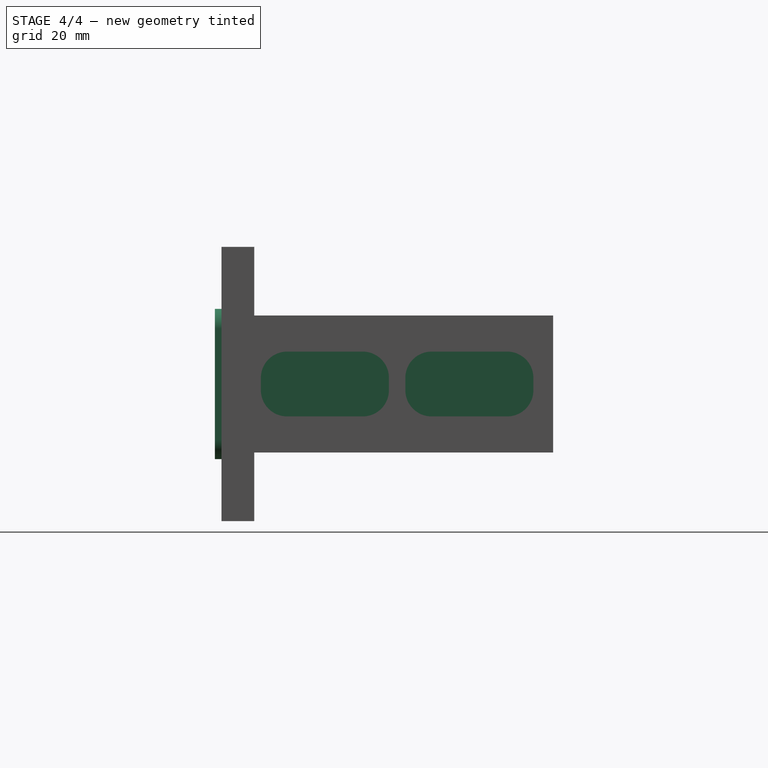
[diagram: stage 4 of 4 — right view after this stage's code; geometry added in this stage tinted green]
FEATURE [PartDesign::CoordinateSystem] LCS_Origin
  AttacherType = Attacher::AttachEngine3D
  MapMode = 2
  Support = -> [X_Axis001]
FEATURE [App::DocumentObjectGroup] Constraints
FEATURE [App::FeaturePython] Variables  # WARN: FeaturePython — macro-defined, semantics opaque (R4)
  Type = App::PropertyContainer
FEATURE [App::DocumentObjectGroup] Configurations
FEATURE [PartDesign::CoordinateSystem] LCS_Origin001  label="Rack Mount Origin"
  AttacherType = Attacher::AttachEngine3D
  MapMode = 2
  Support = -> [X_Axis002]
FEATURE [PartDesign::CoordinateSystem] LCS_Origin002  label="ER605 Centre Front"
  AttacherType = Attacher::AttachEngine3D
  MapMode = 2
  Support = -> [X_Axis003]
FEATURE [PartDesign::Plane] DatumPlane006  label="ER605 Front"
  Length = 176.833
  MapMode = 5
  Placement = pos=(0,0,0) rot=(1,0,0;1.5708rad)
  ResizeMode = 0
  Support = -> [XZ_Plane004]
  Width = 67.8326
FEATURE [PartDesign::Plane] DatumPlane007  label="ER605 Back"
  AttachmentOffset = pos=(0,0,-100.5) rot=(0,0,1;0rad)
  Length = 176.833
  MapMode = 5
  Placement = pos=(0,100.5,2.23e-14) rot=(1,0,0;1.5708rad)
  ResizeMode = 0
  Support = -> [DatumPlane006]
  Width = 67.8326
FEATURE [Sketcher::SketchObject] Sketch008  label="ER605 Front Profile"
  FullyConstrained = true
  MapMode = 5
  Placement = pos=(0,0,0) rot=(1,0,0;1.5708rad)
  Support = -> [DatumPlane006]
  sketch-geometry (5):
    g0: LineSegment StartX=-79.5 StartY=12.75 StartZ=0 EndX=-79.5 EndY=-12.75 EndZ=0
    g1: LineSegment StartX=-79.5 StartY=-12.75 StartZ=0 EndX=79.5 EndY=-12.75 EndZ=0
    g2: LineSegment StartX=79.5 StartY=-12.75 StartZ=0 EndX=79.5 EndY=12.75 EndZ=0
    g3: LineSegment StartX=79.5 StartY=12.75 StartZ=0 EndX=-79.5 EndY=12.75 EndZ=0
    g4: GeomPoint X=0 Y=0 Z=0
  constraints (12):
    c: Coincident(g0,g1)
    c: Coincident(g1,g2)
    c: Coincident(g2,g3)
    c: Coincident(g3,g0)
    c: Horizontal(g1)
    c: Horizontal(g3)
    c: Vertical(g0)
    c: Vertical(g2)
    c: Symmetric(g1,g0,g4)
    c: Coincident(g4,g-1)
    c: DistanceX(g3,g3) = 159  'width'
    c: DistanceY(g2,g2) = 25.5  'height'
FEATURE [PartDesign::Pad] Pad002  label="ER605 Volume"
  Direction = (0,-1,-2e-16)
  Length = 10
  Length2 = 10
  Placement = pos=(0,0,0) rot=(1,0,0;1.5708rad)
  Profile = -> Sketch008
  ReferenceAxis = -> Sketch008 [N_Axis]
  Type = 3
  UpToFace = -> DatumPlane007 [Plane]
FEATURE [PartDesign::CoordinateSystem] Local_CS  label="Front Of Device (Body)"
  AttacherType = Attacher::AttachEngine3D
  AttachmentOffset = pos=(0,0,0) rot=(-1,0,0;1.5708rad)
  MapMode = 5
  Placement = pos=(0,0.5,1e-16) rot=(0,0,1;0rad)
  Support = -> [DatumPlane003]
FEATURE [PartDesign::CoordinateSystem] Front_Of_Device  label="Front Of Device"
  AttacherType = Attacher::AttachEngine3D
  MapMode = 5
  Placement = pos=(0,0.5,1e-16) rot=(0,0,1;0rad)
  Support = -> [Local_CS]
FEATURE [App::Link] Rack_Mount_Ass  label="Rack Mount (Ass)"
  AttachedBy = #LCS_Origin001
  AttachedTo = Parent Assembly#LCS_Origin
  LinkedObject = -> Rack_Mount
  SolverId = Asm4EE
  expr: Placement = LCS_Origin.Placement * AttachmentOffset * LCS_Origin001.Placement ^ -1
FEATURE [App::Link] ER605_Ass  label="ER605 (Ass)"
  AttachedBy = #LCS_Origin002
  AttachedTo = Rack_Mount_Ass#Front_Of_Device
  LinkPlacement = pos=(0,0.5,1e-16) rot=(0,0,1;0rad)
  LinkedObject = -> ER605
  Placement = pos=(0,0.5,1e-16) rot=(0,0,1;0rad)
  SolverId = Asm4EE
  expr: Placement = Rack_Mount_Ass.Placement * Front_Of_Device.Placement * AttachmentOffset * LCS_Origin002.Placement ^ -1
FEATURE [PartDesign::Plane] DatumPlane012  label="Retention Clamp Bottom"
  Length = 60
  MapMode = 5
  Placement = pos=(0,0,0) rot=(1,0,0;1.5708rad)
  ResizeMode = 0
  Support = -> [XZ_Plane006]
  Width = 60
FEATURE [Sketcher::SketchObject] Sketch009  label="Retention Clamp Outer"
  FullyConstrained = true
  MapMode = 5
  Placement = pos=(0,0,0) rot=(1,0,0;1.5708rad)
  Support = -> [DatumPlane012]
  expr: Constraints[7] = <<Shelf Retention Clamp Mounting Holes Outer>>.Constraints.offset
  sketch-geometry (4):
    g0: ArcOfCircle CenterX=0 CenterY=16.875 CenterZ=0 NormalX=0 NormalY=0 NormalZ=1 AngleXU=0 Radius=6 StartAngle=1.64e-14 EndAngle=3.14159
    g1: ArcOfCircle CenterX=0 CenterY=-16.875 CenterZ=0 NormalX=0 NormalY=0 NormalZ=1 AngleXU=0 Radius=6 StartAngle=3.14159 EndAngle=6.28319
    g2: LineSegment StartX=-6 StartY=16.875 StartZ=0 EndX=-6 EndY=-16.875 EndZ=0
    g3: LineSegment StartX=6 StartY=-16.875 StartZ=0 EndX=6 EndY=16.875 EndZ=0
  constraints (9):
    c: Tangent(g0,g2) = -1.5708
    c: Tangent(g2,g1) = -1.5708
    c: Tangent(g1,g3) = -1.5708
    c: Tangent(g3,g0) = -1.5708
    c: Equal(g0,g1)
    c: PointOnObject(g0,g-2)
    c: Symmetric(g0,g1,g-1)
    c: DistanceY(g1,g0) = 33.75
    c: Radius(g0) = 6
FEATURE [PartDesign::Plane] DatumPlane013  label="Retention Clamp Top"
  AttachmentOffset = pos=(0,0,2) rot=(0,0,1;0rad)
  Length = 60
  MapMode = 5
  Placement = pos=(0,-2,-4e-16) rot=(1,0,0;1.5708rad)
  ResizeMode = 0
  Support = -> [DatumPlane012]
  Width = 60
FEATURE [PartDesign::Pad] Pad003  label="Retention Clamp Volume"
  Direction = (0,-1,-2e-16)
  Length = 10
  Length2 = 10
  Placement = pos=(0,0,0) rot=(1,0,0;1.5708rad)
  Profile = -> Sketch009
  ReferenceAxis = -> Sketch009 [N_Axis]
  Type = 3
  UpToFace = -> DatumPlane013 [Plane]
FEATURE [Sketcher::SketchObject] Sketch010  label="Retention Clamp Mounting Holes Outer"
  FullyConstrained = true
  MapMode = 5
  Placement = pos=(0,-2,-4e-16) rot=(1,0,0;1.5708rad)
  Support = -> [DatumPlane013]
  expr: .Constraints.offset = <<Shelf Retention Clamp Mounting Holes Outer>>.Constraints.offset
  sketch-geometry (2):
    g0: Circle CenterX=0 CenterY=16.875 CenterZ=0 NormalX=0 NormalY=0 NormalZ=1 AngleXU=0 Radius=1.55
    g1: Circle CenterX=0 CenterY=-16.875 CenterZ=0 NormalX=0 NormalY=0 NormalZ=1 AngleXU=0 Radius=1.55
  constraints (5):
    c: PointOnObject(g0,g-2)
    c: Symmetric(g0,g1,g-1)
    c: Equal(g0,g1)
    c: Diameter(g0) = 3.1  'diameter'
    c: DistanceY(g1,g0) = 33.75  'offset'
FEATURE [PartDesign::Pocket] Pocket005  label="Retention Clamp Mounting Holes"
  BaseFeature = -> Pad003
  Direction = (0,1,2e-16)
  Length = 0
  Length2 = 5
  Placement = pos=(0,0,0) rot=(1,0,0;1.5708rad)
  Profile = -> Sketch010
  ReferenceAxis = -> Sketch010 [N_Axis]
  Type = 3
  UpToFace = -> DatumPlane012
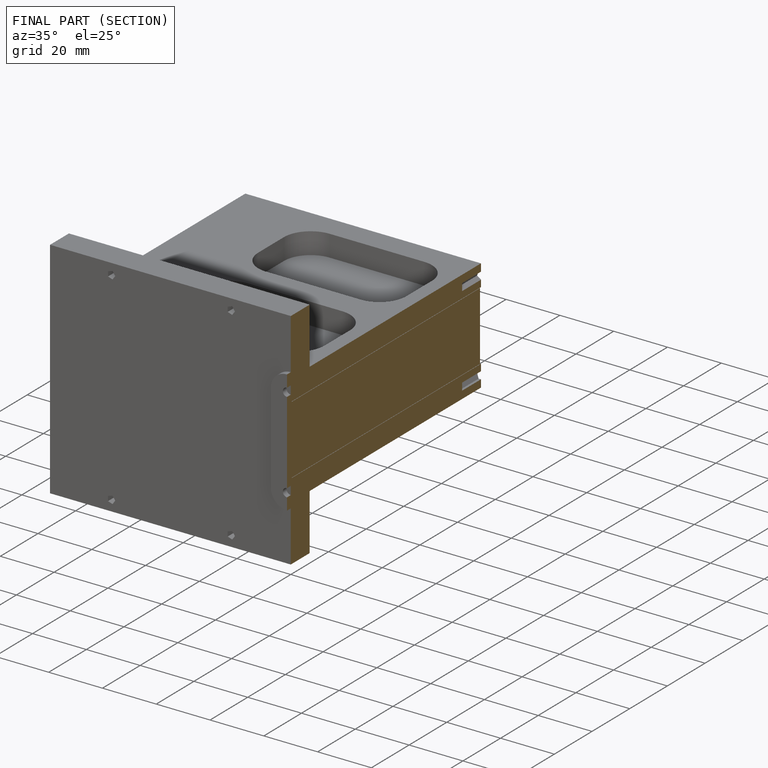
[diagram: finished part — half-section view (interior)]
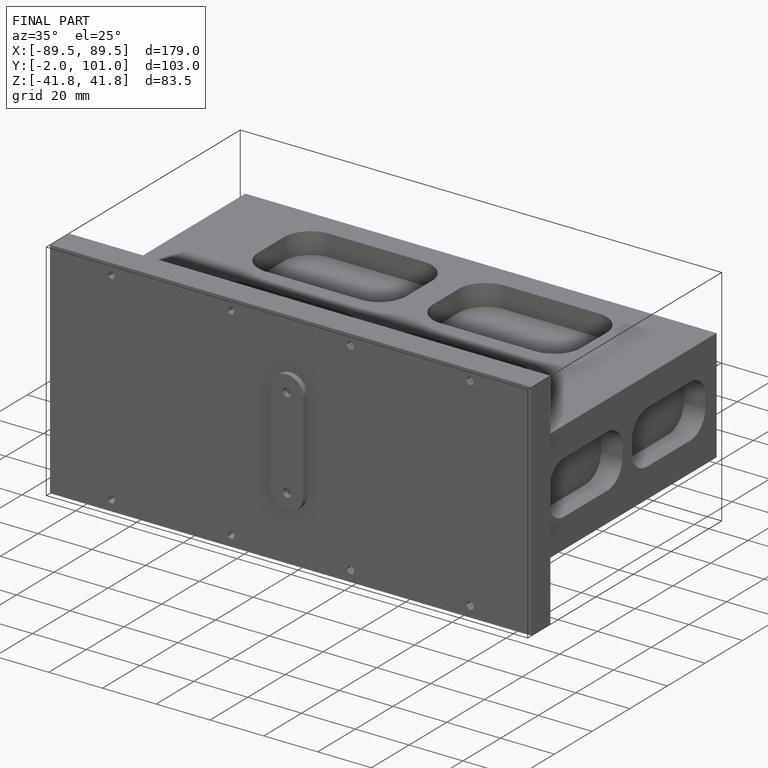
[diagram: finished part — iso view with bounding-box wireframe]
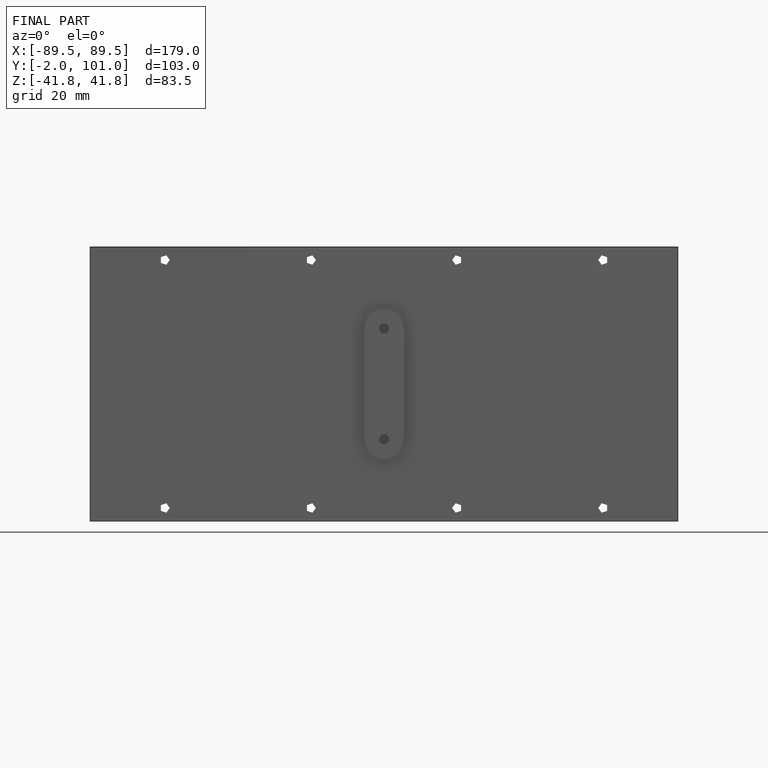
[diagram: finished part — front view with bounding-box wireframe]
